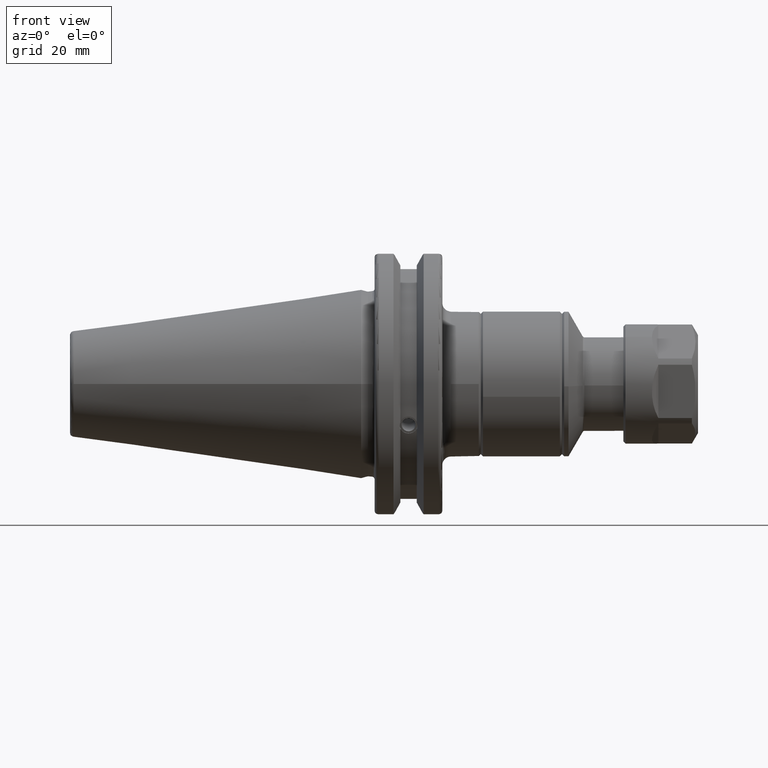
[diagram: clean part render]
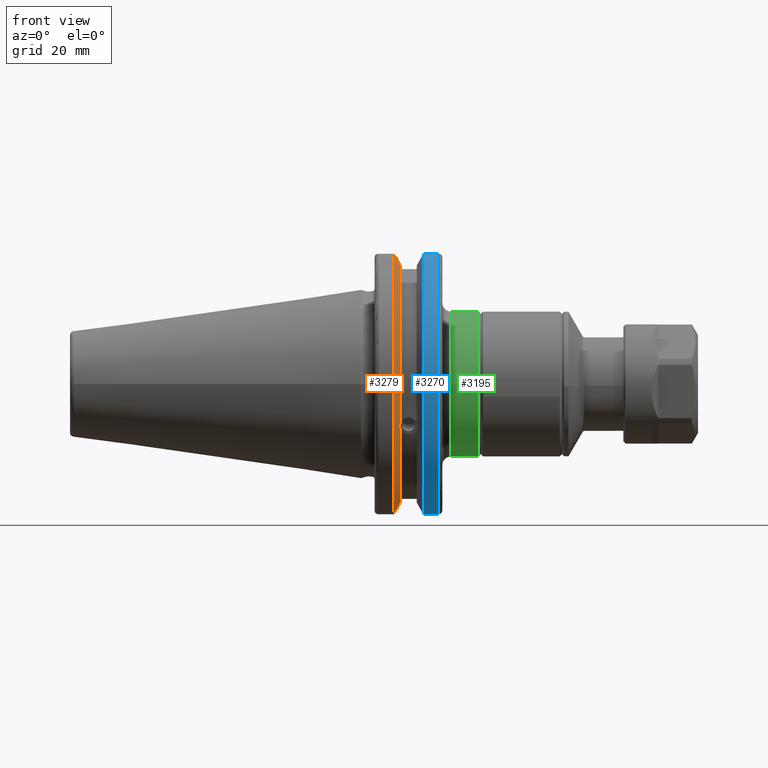
[diagram: same view with three faces highlighted in distinct colors, each labeled with its STEP entity id]
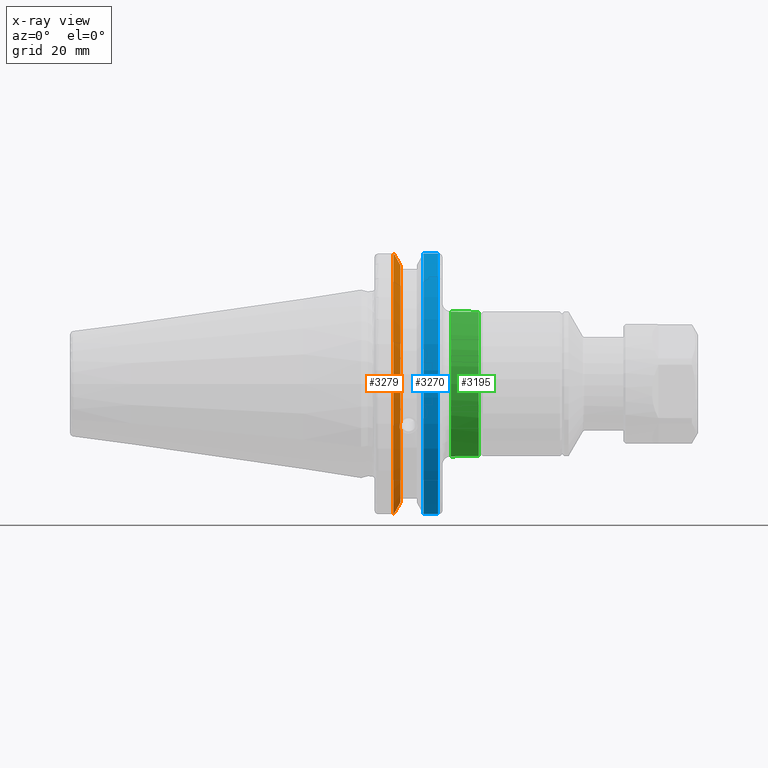
[diagram: x-ray of the same camera — body ghosted, the three highlighted faces saturated]
A machine part, front view with three faces highlighted in distinct colors.
The next image is the same camera in x-ray (body ghosted, the three faces saturated) — at least one of them is partly hidden behind the body in this view.
Their STEP definitions:

[orange] entity #3279 — the highlighted conical surface has half-angle 60 deg.
#90=(
BOUNDED_CURVE()
B_SPLINE_CURVE(2,(#5705,#5706,#5707),.UNSPECIFIED.,.F.,.F.)
B_SPLINE_CURVE_WITH_KNOTS((3,3),(0.,0.276549142797088),.UNSPECIFIED.)
CURVE()
GEOMETRIC_REPRESENTATION_ITEM()
RATIONAL_B_SPLINE_CURVE((1.,1.00095203903867,1.00031614444995))
REPRESENTATION_ITEM('')
);
#91=(
BOUNDED_CURVE()
B_SPLINE_CURVE(2,(#5717,#5718,#5719),.UNSPECIFIED.,.F.,.F.)
B_SPLINE_CURVE_WITH_KNOTS((3,3),(0.0550586467393311,0.331607789535851),
 .UNSPECIFIED.)
CURVE()
GEOMETRIC_REPRESENTATION_ITEM()
RATIONAL_B_SPLINE_CURVE((1.00031614445049,1.00095203904028,1.))
REPRESENTATION_ITEM('')
);
#92=(
BOUNDED_CURVE()
B_SPLINE_CURVE(2,(#5752,#5753,#5754),.UNSPECIFIED.,.F.,.F.)
B_SPLINE_CURVE_WITH_KNOTS((3,3),(0.,0.0639048713675838),.UNSPECIFIED.)
CURVE()
GEOMETRIC_REPRESENTATION_ITEM()
RATIONAL_B_SPLINE_CURVE((1.,1.00028444218292,1.00047644010588))
REPRESENTATION_ITEM('')
);
#93=(
BOUNDED_CURVE()
B_SPLINE_CURVE(2,(#5760,#5761,#5762),.UNSPECIFIED.,.F.,.F.)
B_SPLINE_CURVE_WITH_KNOTS((3,3),(0.329353533631213,0.393258405001024),
 .UNSPECIFIED.)
CURVE()
GEOMETRIC_REPRESENTATION_ITEM()
RATIONAL_B_SPLINE_CURVE((1.00047644010576,1.00028444218285,1.))
REPRESENTATION_ITEM('')
);
#143=B_SPLINE_CURVE_WITH_KNOTS('',3,(#5325,#5326,#5327,#5328,#5329,#5330,
#5331,#5332,#5333,#5334,#5335,#5336,#5337,#5338),.UNSPECIFIED.,.F.,.F.,
(4,2,2,2,2,2,4),(0.451995700189025,0.464547828547662,0.504528771685168,
0.544509714822673,0.584490657960178,0.624471601097683,0.637023729456319),
 .UNSPECIFIED.);
#467=FACE_OUTER_BOUND('',#688,.T.);
#688=EDGE_LOOP('',(#2676,#2677,#2678,#2679,#2680,#2681,#2682,#2683));
#1241=CIRCLE('',#3626,28.9593772964944);
#1265=CIRCLE('',#3680,31.75);
#1277=CIRCLE('',#3715,28.9593772964944);
#1464=VERTEX_POINT('',#5322);
#1465=VERTEX_POINT('',#5324);
#1482=VERTEX_POINT('',#5417);
#1541=VERTEX_POINT('',#5702);
#1542=VERTEX_POINT('',#5704);
#1545=VERTEX_POINT('',#5716);
#1549=VERTEX_POINT('',#5750);
#1550=VERTEX_POINT('',#5756);
#1809=EDGE_CURVE('',#1465,#1464,#143,.T.);
#1833=EDGE_CURVE('',#1465,#1482,#1241,.T.);
#1916=EDGE_CURVE('',#1542,#1541,#90,.T.);
#1922=EDGE_CURVE('',#1545,#1482,#91,.T.);
#1930=EDGE_CURVE('',#1549,#1541,#92,.T.);
#1932=EDGE_CURVE('',#1549,#1550,#1265,.T.);
#1933=EDGE_CURVE('',#1545,#1550,#93,.T.);
#1966=EDGE_CURVE('',#1542,#1464,#1277,.T.);
#2676=ORIENTED_EDGE('',*,*,#1809,.T.);
#2677=ORIENTED_EDGE('',*,*,#1966,.F.);
#2678=ORIENTED_EDGE('',*,*,#1916,.T.);
#2679=ORIENTED_EDGE('',*,*,#1930,.F.);
#2680=ORIENTED_EDGE('',*,*,#1932,.T.);
#2681=ORIENTED_EDGE('',*,*,#1933,.F.);
#2682=ORIENTED_EDGE('',*,*,#1922,.T.);
#2683=ORIENTED_EDGE('',*,*,#1833,.F.);
#3155=CONICAL_SURFACE('',#3714,30.3546886482472,1.0471975511966);
#3279=ADVANCED_FACE('',(#467),#3155,.T.);
#3626=AXIS2_PLACEMENT_3D('',#5418,#4222,#4223);
#3680=AXIS2_PLACEMENT_3D('',#5758,#4375,#4376);
#3714=AXIS2_PLACEMENT_3D('',#5855,#4458,#4459);
#3715=AXIS2_PLACEMENT_3D('',#5856,#4460,#4461);
#4222=DIRECTION('center_axis',(1.,0.,0.));
#4223=DIRECTION('ref_axis',(0.,0.,-1.));
#4375=DIRECTION('center_axis',(1.,0.,0.));
#4376=DIRECTION('ref_axis',(0.,0.,-1.));
#4458=DIRECTION('center_axis',(-1.,0.,0.));
#4459=DIRECTION('ref_axis',(0.,-1.,-1.22464679914735E-16));
#4460=DIRECTION('center_axis',(1.,0.,0.));
#4461=DIRECTION('ref_axis',(0.,0.,-1.));
#5322=CARTESIAN_POINT('',(9.2191,-27.4956274489925,-9.09043478536247));
#5324=CARTESIAN_POINT('',(9.21909999999999,-26.9060914640648,-10.7101715919071));
#5325=CARTESIAN_POINT('Ctrl Pts',(9.21909999999999,-26.9060914640648,-10.7101715919071));
#5326=CARTESIAN_POINT('Ctrl Pts',(9.20497959280038,-26.9406927482839,-10.6893765730703));
#5327=CARTESIAN_POINT('Ctrl Pts',(9.19150701821433,-26.9744191989197,-10.6676007180673));
#5328=CARTESIAN_POINT('Ctrl Pts',(9.13811855884095,-27.1113422433188,-10.5723885976054));
#5329=CARTESIAN_POINT('Ctrl Pts',(9.09998029158246,-27.2180531796526,-10.4801333026531));
#5330=CARTESIAN_POINT('Ctrl Pts',(9.04778935539424,-27.3968610665578,-10.2639559818059));
#5331=CARTESIAN_POINT('Ctrl Pts',(9.0341,-27.4684373304961,-10.139516340139));
#5332=CARTESIAN_POINT('Ctrl Pts',(9.0341,-27.559599249844,-9.8890510252165));
#5333=CARTESIAN_POINT('Ctrl Pts',(9.04778935539424,-27.5847569104121,-9.74771639360671));
#5334=CARTESIAN_POINT('Ctrl Pts',(9.09998029158246,-27.5867382255984,-9.46717946402648));
#5335=CARTESIAN_POINT('Ctrl Pts',(9.13811855884095,-27.5642934663232,-9.32791534028655));
#5336=CARTESIAN_POINT('Ctrl Pts',(9.19150701821433,-27.5206055003512,-9.16696618806878));
#5337=CARTESIAN_POINT('Ctrl Pts',(9.20497959280038,-27.5087667900418,-9.12860597076219));
#5338=CARTESIAN_POINT('Ctrl Pts',(9.21909999999999,-27.4956274489925,-9.09043478536247));
#5417=CARTESIAN_POINT('',(9.2191,-8.19,-27.7771386827498));
#5418=CARTESIAN_POINT('Origin',(9.2191,0.,0.));
#5702=CARTESIAN_POINT('',(7.88668530351255,-8.19,30.1755016258903));
#5704=CARTESIAN_POINT('',(9.2191,-8.19,27.7771386827498));
#5705=CARTESIAN_POINT('Ctrl Pts',(9.2191,-8.19,27.7771386827498));
#5706=CARTESIAN_POINT('Ctrl Pts',(8.58046356153227,-8.19,28.9303689539555));
#5707=CARTESIAN_POINT('Ctrl Pts',(7.88668530351255,-8.19,30.1755016258903));
#5716=CARTESIAN_POINT('',(7.88668530351256,-8.19,-30.1755016258903));
#5717=CARTESIAN_POINT('Ctrl Pts',(7.88668530351256,-8.19,-30.1755016258903));
#5718=CARTESIAN_POINT('Ctrl Pts',(8.5804635615239,-8.19,-28.9303689539705));
#5719=CARTESIAN_POINT('Ctrl Pts',(9.2191,-8.19,-27.7771386827498));
#5750=CARTESIAN_POINT('',(7.60793323092436,-8.67204822802685,30.5427254764662));
#5752=CARTESIAN_POINT('Ctrl Pts',(7.60793323092436,-8.67204822802685,30.5427254764662));
#5753=CARTESIAN_POINT('Ctrl Pts',(7.74899148121628,-8.42917748262643,30.3577067892629));
#5754=CARTESIAN_POINT('Ctrl Pts',(7.88668530351255,-8.19,30.1755016258903));
#5756=CARTESIAN_POINT('',(7.60793323092436,-8.67204822802685,-30.5427254764662));
#5758=CARTESIAN_POINT('Origin',(7.60793323092436,0.,0.));
#5760=CARTESIAN_POINT('Ctrl Pts',(7.88668530351256,-8.19,-30.1755016258903));
#5761=CARTESIAN_POINT('Ctrl Pts',(7.7489914812116,-8.42917748263465,-30.3577067892692));
#5762=CARTESIAN_POINT('Ctrl Pts',(7.60793323092436,-8.67204822802685,-30.5427254764662));
#5855=CARTESIAN_POINT('Origin',(8.41351661546217,0.,0.));
#5856=CARTESIAN_POINT('Origin',(9.2191,0.,0.));

[blue] entity #3270 — the highlighted cylindrical surface (partial cylindrical patch) has radius 31.75 mm, axis along (1, 0, 0).
#339=CYLINDRICAL_SURFACE('',#3701,31.75);
#458=FACE_OUTER_BOUND('',#679,.T.);
#679=EDGE_LOOP('',(#2637,#2638,#2639,#2640));
#913=LINE('',#5829,#1101);
#914=LINE('',#5831,#1102);
#1101=VECTOR('',#4426,10.);
#1102=VECTOR('',#4429,10.);
#1237=CIRCLE('',#3619,31.75);
#1263=CIRCLE('',#3673,31.75);
#1476=VERTEX_POINT('',#5393);
#1477=VERTEX_POINT('',#5397);
#1538=VERTEX_POINT('',#5674);
#1539=VERTEX_POINT('',#5683);
#1825=EDGE_CURVE('',#1477,#1476,#1237,.T.);
#1911=EDGE_CURVE('',#1538,#1539,#1263,.T.);
#1955=EDGE_CURVE('',#1539,#1476,#913,.T.);
#1956=EDGE_CURVE('',#1477,#1538,#914,.T.);
#2637=ORIENTED_EDGE('',*,*,#1911,.F.);
#2638=ORIENTED_EDGE('',*,*,#1956,.F.);
#2639=ORIENTED_EDGE('',*,*,#1825,.T.);
#2640=ORIENTED_EDGE('',*,*,#1955,.F.);
#3270=ADVANCED_FACE('',(#458),#339,.T.);
#3619=AXIS2_PLACEMENT_3D('',#5398,#4206,#4207);
#3673=AXIS2_PLACEMENT_3D('',#5684,#4350,#4351);
#3701=AXIS2_PLACEMENT_3D('',#5830,#4427,#4428);
#4206=DIRECTION('center_axis',(1.,0.,0.));
#4207=DIRECTION('ref_axis',(0.,0.,-1.));
#4350=DIRECTION('center_axis',(1.,0.,0.));
#4351=DIRECTION('ref_axis',(0.,-1.,1.60812264967664E-16));
#4426=DIRECTION('',(-1.,0.,0.));
#4427=DIRECTION('center_axis',(1.,0.,0.));
#4428=DIRECTION('ref_axis',(0.,-1.,1.22464679914735E-16));
#4429=DIRECTION('',(1.,0.,0.));
#5393=CARTESIAN_POINT('',(14.6602667690756,-8.67204822802686,-30.5427254764662));
#5397=CARTESIAN_POINT('',(14.6602667690756,-8.67204822802685,30.5427254764662));
#5398=CARTESIAN_POINT('Origin',(14.6602667690756,0.,0.));
#5674=CARTESIAN_POINT('',(18.05,-8.67204822802685,30.5427254764662));
#5683=CARTESIAN_POINT('',(18.05,-8.67204822802686,-30.5427254764662));
#5684=CARTESIAN_POINT('Origin',(18.05,0.,0.));
#5829=CARTESIAN_POINT('',(16.8551333845378,-8.67204822802686,-30.5427254764662));
#5830=CARTESIAN_POINT('Origin',(16.8551333845378,0.,0.));
#5831=CARTESIAN_POINT('',(16.8551333845378,-8.67204822802685,30.5427254764662));

[green] entity #3195 — the highlighted cylindrical surface (bore or boss wall) has radius 17 mm, axis along (1, 0, 0).
#312=CYLINDRICAL_SURFACE('',#3540,17.);
#383=FACE_OUTER_BOUND('',#583,.T.);
#583=EDGE_LOOP('',(#2228,#2229,#2230,#2231,#2232,#2233));
#822=LINE('',#5059,#1010);
#1010=VECTOR('',#4019,17.);
#1201=CIRCLE('',#3536,17.);
#1204=CIRCLE('',#3539,17.);
#1205=CIRCLE('',#3541,17.);
#1206=CIRCLE('',#3542,17.);
#1404=VERTEX_POINT('',#5047);
#1405=VERTEX_POINT('',#5048);
#1407=VERTEX_POINT('',#5055);
#1408=VERTEX_POINT('',#5056);
#1727=EDGE_CURVE('',#1404,#1405,#1201,.T.);
#1730=EDGE_CURVE('',#1405,#1404,#1204,.T.);
#1731=EDGE_CURVE('',#1407,#1408,#1205,.T.);
#1732=EDGE_CURVE('',#1408,#1407,#1206,.T.);
#1733=EDGE_CURVE('',#1408,#1404,#822,.T.);
#2228=ORIENTED_EDGE('',*,*,#1731,.F.);
#2229=ORIENTED_EDGE('',*,*,#1732,.F.);
#2230=ORIENTED_EDGE('',*,*,#1733,.T.);
#2231=ORIENTED_EDGE('',*,*,#1730,.F.);
#2232=ORIENTED_EDGE('',*,*,#1727,.F.);
#2233=ORIENTED_EDGE('',*,*,#1733,.F.);
#3195=ADVANCED_FACE('',(#383),#312,.T.);
#3536=AXIS2_PLACEMENT_3D('',#5049,#4005,#4006);
#3539=AXIS2_PLACEMENT_3D('',#5053,#4011,#4012);
#3540=AXIS2_PLACEMENT_3D('',#5054,#4013,#4014);
#3541=AXIS2_PLACEMENT_3D('',#5057,#4015,#4016);
#3542=AXIS2_PLACEMENT_3D('',#5058,#4017,#4018);
#4005=DIRECTION('center_axis',(-1.,0.,0.));
#4006=DIRECTION('ref_axis',(0.,-1.,-1.22464679914735E-16));
#4011=DIRECTION('center_axis',(-1.,0.,0.));
#4012=DIRECTION('ref_axis',(0.,-1.,-1.22464679914735E-16));
#4013=DIRECTION('center_axis',(1.,0.,0.));
#4014=DIRECTION('ref_axis',(0.,1.,0.));
#4015=DIRECTION('center_axis',(1.,0.,0.));
#4016=DIRECTION('ref_axis',(0.,-1.,0.));
#4017=DIRECTION('center_axis',(1.,0.,0.));
#4018=DIRECTION('ref_axis',(0.,-1.,0.));
#4019=DIRECTION('',(-1.,0.,0.));
#5047=CARTESIAN_POINT('',(21.05,-17.,-2.0818995585505E-15));
#5048=CARTESIAN_POINT('',(21.05,-2.0818995585505E-15,-17.));
#5049=CARTESIAN_POINT('Origin',(21.05,0.,0.));
#5053=CARTESIAN_POINT('Origin',(21.05,0.,0.));
#5054=CARTESIAN_POINT('Origin',(23.575,0.,0.));
#5055=CARTESIAN_POINT('',(27.6,17.,2.0818995585505E-15));
#5056=CARTESIAN_POINT('',(27.6,-17.,-2.0818995585505E-15));
#5057=CARTESIAN_POINT('Origin',(27.6,0.,0.));
#5058=CARTESIAN_POINT('Origin',(27.6,0.,0.));
#5059=CARTESIAN_POINT('',(23.575,-17.,-2.0818995585505E-15));